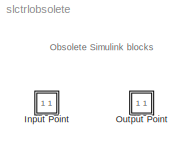
MODEL slctrlobsolete
KIND library
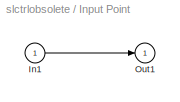
BLOCK [SubSystem] Input Point
  CopyFcn = connectline('copy');
  DeleteFcn = connectline('delete');
  MaskDescription = Use this block to specify the inputs of the submodel to be analyzed with the LTI Viewer for Simulink.\n\nYou can launch the LTI Viewer by selecting \"Linear Analysis\" under the Tools menu.
  MaskDisplay = plot(33,-30,66,100,[31,38],[70,70],[34.5,34.5],[56,86],[50,50],[50,100],[50,55],[50,80],[50,45],[50,80],[50,53,55,55,55,53,50,47,44,44,44,47,50],[50,49,40,30,21,10,10,10,21,30,40,50,50],[33 44],[31 31],[56 66],[31 31])\n
  MaskIconFrame = off
  MaskIconOpaque = on
  MaskIconRotate = port
  MaskIconUnits = autoscale
  MaskSelfModifiable = on
  MaskType = InputPoint
  MinAlgLoopOccurrences = off
  OpenFcn = connectline('open');
  Ports = [1, 1]
  PropExecContextAcrossSSBoundary = on
  RTWSystemCode = Auto
  StartFcn = connectline('start');
  TreatAsAtomicUnit = on
BLOCK [Inport] Input Point/In1
  IconDisplay = Port number
  LatchInput = off
BLOCK [Outport] Input Point/Out1
  BusOutputAsStruct = off
  IconDisplay = Port number
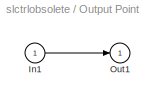
BLOCK [SubSystem] Output Point
  CopyFcn = connectline('copy');
  DeleteFcn = connectline('delete');
  MaskDescription = Use this block to specify the outputs of the submodel to be analyzed with the LTI Viewer for Simulink.\n\nYou can launch the LTI Viewer by selecting \"Linear Analysis\" under the Tools menu.
  MaskDisplay = plot(33,-30,66,100,[49.5,49.5],[50,100],[50,55],[100,80],[50,45],[100,80],[46,48,51,53,53,50,48,46,46],[40,50,50,40,30,20,21,30,40],[33 44],[33 33],[53 66],[33 33])\n\n
  MaskIconFrame = off
  MaskIconOpaque = on
  MaskIconRotate = port
  MaskIconUnits = autoscale
  MaskSelfModifiable = on
  MaskType = OutputPoint
  MinAlgLoopOccurrences = off
  OpenFcn = connectline('open');
  Ports = [1, 1]
  PropExecContextAcrossSSBoundary = on
  RTWSystemCode = Auto
  TreatAsAtomicUnit = on
BLOCK [Inport] Output Point/In1
  IconDisplay = Port number
  LatchInput = off
BLOCK [Outport] Output Point/Out1
  BusOutputAsStruct = off
  IconDisplay = Port number
  InitialOutput = 0
ANNOTATION (root): Obsolete Simulink blocks
LINE Input Point/In1:1 -> Input Point/Out1:1
LINE Output Point/In1:1 -> Output Point/Out1:1
